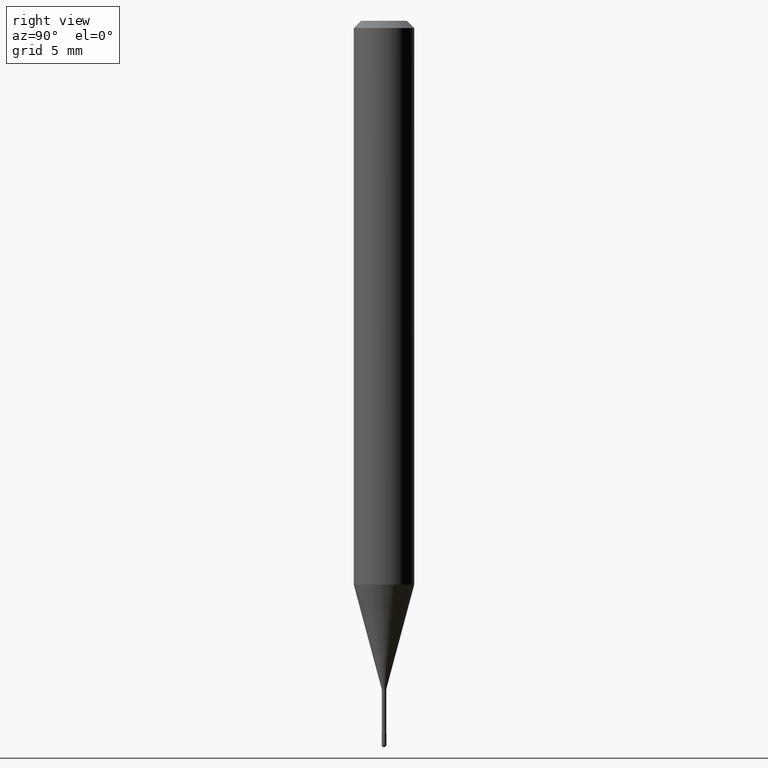
[diagram: clean part render]
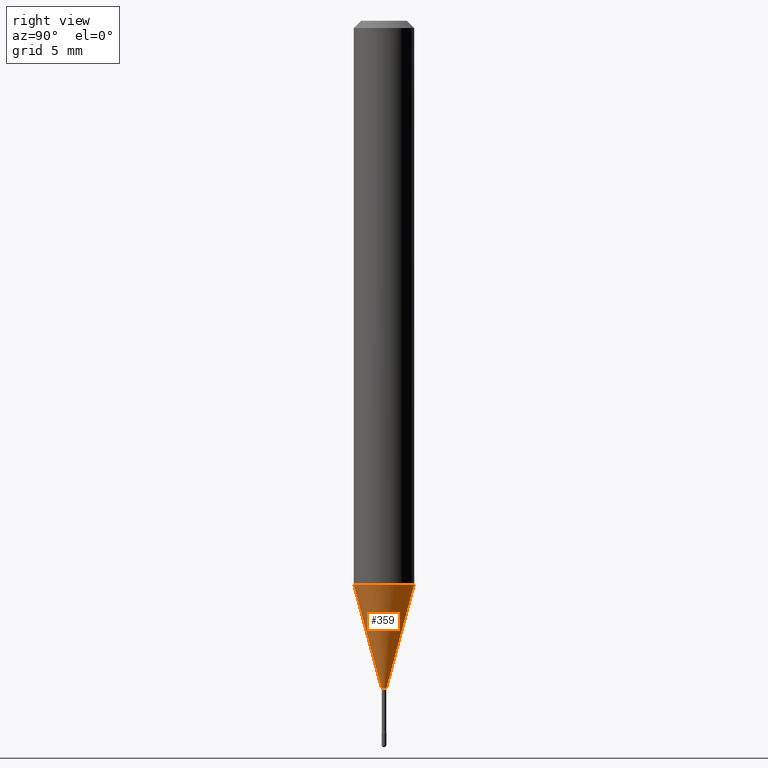
[diagram: same view with one face highlighted and labeled with its STEP entity id]
A machine part, right view. The second image highlights one B-rep face of the part: STEP entity #359.
In plain terms, the highlighted conical surface has half-angle 15 deg.
Its self-contained STEP definition (entity closure, byte-faithful):
#8 = LINE ( 'NONE', #413, #406 ) ;
#11 = VERTEX_POINT ( 'NONE', #20 ) ;
#20 = CARTESIAN_POINT ( 'NONE',  ( 4.440892098500908179E-16, 0.06249999999999591299, -1.164287463322519978 ) ) ;
#61 = AXIS2_PLACEMENT_3D ( 'NONE', #62, #411, #332 ) ;
#62 = CARTESIAN_POINT ( 'NONE',  ( 2.844964394991831365E-29, -4.068330526204302951E-15, -1.164287463322519756 ) ) ;
#88 = DIRECTION ( 'NONE',  ( -2.443524030459947148E-29, 3.494266368371377080E-15, 1.000000000000000000 ) ) ;
#102 = DIRECTION ( 'NONE',  ( -1.807323732225327773E-15, -0.2588190451025178529, 0.9659258262890690894 ) ) ;
#119 = VERTEX_POINT ( 'NONE', #329 ) ;
#120 = EDGE_LOOP ( 'NONE', ( #361, #277, #422, #540 ) ) ;
#133 = CONICAL_SURFACE ( 'NONE', #438, 0.005211112605663922176, 0.2617993877991499074 ) ;
#153 = DIRECTION ( 'NONE',  ( -2.443524030459947148E-29, 3.494266368371377080E-15, 1.000000000000000000 ) ) ;
#197 = DIRECTION ( 'NONE',  ( -6.982962677686266711E-15, -1.000000000000000000, 0.000000000000000000 ) ) ;
#202 = AXIS2_PLACEMENT_3D ( 'NONE', #341, #88, #344 ) ;
#276 = CARTESIAN_POINT ( 'NONE',  ( 2.405581959609744668E-16, 0.005211112605659106584, -1.378092501787273605 ) ) ;
#277 = ORIENTED_EDGE ( 'NONE', *, *, #522, .T. ) ;
#279 = CARTESIAN_POINT ( 'NONE',  ( -4.364351673553632211E-16, -0.06250000000000408007, -1.164287463322519312 ) ) ;
#295 = EDGE_CURVE ( 'NONE', #119, #337, #563, .T. ) ;
#302 = CARTESIAN_POINT ( 'NONE',  ( 3.702718207185754248E-17, 0.005211112605659106584, -1.378092501787273605 ) ) ;
#329 = CARTESIAN_POINT ( 'NONE',  ( -3.638900483453792750E-17, -0.005211112605668737768, -1.378092501787273605 ) ) ;
#332 = DIRECTION ( 'NONE',  ( -6.982962677686265922E-15, -1.000000000000000000, 4.370956789862821150E-15 ) ) ;
#337 = VERTEX_POINT ( 'NONE', #276 ) ;
#341 = CARTESIAN_POINT ( 'NONE',  ( 3.367402144313870632E-29, -4.815422281500041932E-15, -1.378092501787273605 ) ) ;
#344 = DIRECTION ( 'NONE',  ( -6.982962677686266711E-15, -1.000000000000000000, 0.000000000000000000 ) ) ;
#354 = FACE_OUTER_BOUND ( 'NONE', #120, .T. ) ;
#359 = ADVANCED_FACE ( 'NONE', ( #354 ), #133, .T. ) ;
#361 = ORIENTED_EDGE ( 'NONE', *, *, #295, .T. ) ;
#379 = EDGE_CURVE ( 'NONE', #119, #392, #8, .T. ) ;
#392 = VERTEX_POINT ( 'NONE', #279 ) ;
#406 = VECTOR ( 'NONE', #102, 39.37007874015748143 ) ;
#411 = DIRECTION ( 'NONE',  ( -2.443524030459947148E-29, 3.494266368371377080E-15, 1.000000000000000000 ) ) ;
#413 = CARTESIAN_POINT ( 'NONE',  ( -3.638900483453792750E-17, -0.005211112605668737768, -1.378092501787273605 ) ) ;
#420 = LINE ( 'NONE', #302, #510 ) ;
#422 = ORIENTED_EDGE ( 'NONE', *, *, #451, .F. ) ;
#438 = AXIS2_PLACEMENT_3D ( 'NONE', #539, #153, #197 ) ;
#451 = EDGE_CURVE ( 'NONE', #392, #11, #483, .T. ) ;
#473 = DIRECTION ( 'NONE',  ( 1.839019923739597554E-15, 0.2588190451025245697, 0.9659258262890670910 ) ) ;
#483 = CIRCLE ( 'NONE', #61, 0.06250000000000000000 ) ;
#510 = VECTOR ( 'NONE', #473, 39.37007874015748854 ) ;
#522 = EDGE_CURVE ( 'NONE', #337, #11, #420, .T. ) ;
#539 = CARTESIAN_POINT ( 'NONE',  ( 3.367402144313870632E-29, -4.815422281500041932E-15, -1.378092501787273605 ) ) ;
#540 = ORIENTED_EDGE ( 'NONE', *, *, #379, .F. ) ;
#563 = CIRCLE ( 'NONE', #202, 0.005211112605663922176 ) ;